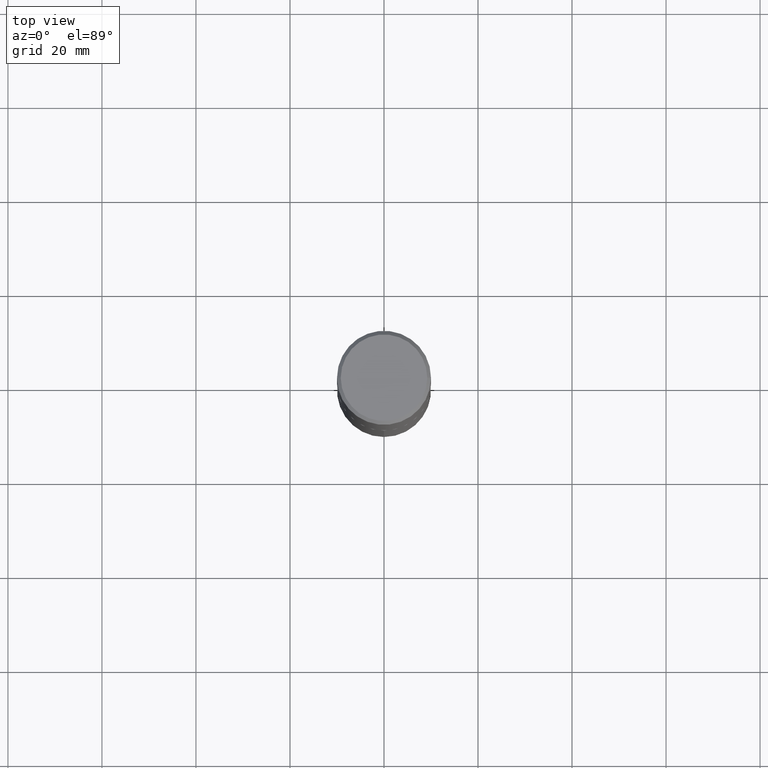
[diagram: clean part render]
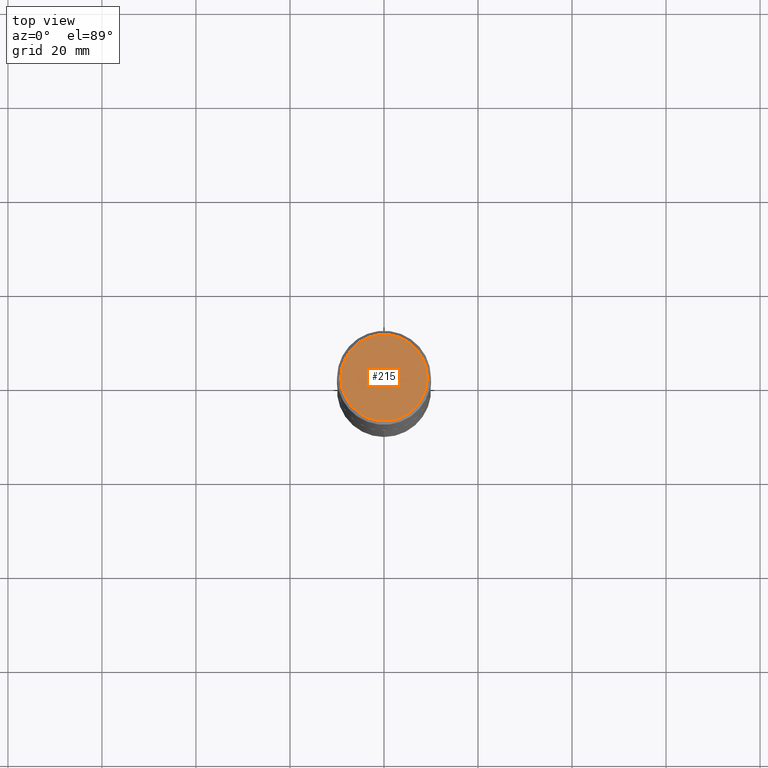
[diagram: same view with one face highlighted and labeled with its STEP entity id]
A machine part, top view. The second image highlights one B-rep face of the part: STEP entity #215.
In plain terms, the highlighted planar face has unit normal (0, -0, -1).
Its self-contained STEP definition (entity closure, byte-faithful):
#2 = AXIS2_PLACEMENT_3D ( 'NONE', #25, #107, #204 ) ;
#4 = CARTESIAN_POINT ( 'NONE',  ( -1.178467787315321927E-46, 1.682539673960461744E-32, 4.818985154644842843E-18 ) ) ;
#13 = ORIENTED_EDGE ( 'NONE', *, *, #168, .T. ) ;
#14 = AXIS2_PLACEMENT_3D ( 'NONE', #331, #56, #328 ) ;
#25 = CARTESIAN_POINT ( 'NONE',  ( -1.178467787315321927E-46, 1.682539673960461744E-32, 4.818985154644842843E-18 ) ) ;
#44 = EDGE_CURVE ( 'NONE', #99, #225, #329, .T. ) ;
#56 = DIRECTION ( 'NONE',  ( 2.438088387897960049E-29, -3.491481338843145188E-15, -1.000000000000000000 ) ) ;
#67 = CIRCLE ( 'NONE', #277, 0.3624500000000000499 ) ;
#84 = DIRECTION ( 'NONE',  ( 1.000000000000000000, -6.982962677686266711E-15, 4.876156645145296500E-29 ) ) ;
#99 = VERTEX_POINT ( 'NONE', #321 ) ;
#107 = DIRECTION ( 'NONE',  ( -2.445468806185136597E-29, 3.491481338843145583E-15, 1.000000000000000000 ) ) ;
#115 = PLANE ( 'NONE',  #14 ) ;
#168 = EDGE_CURVE ( 'NONE', #225, #99, #67, .T. ) ;
#204 = DIRECTION ( 'NONE',  ( 1.000000000000000000, -6.982962677686266711E-15, 4.876156645145296500E-29 ) ) ;
#215 = ADVANCED_FACE ( 'NONE', ( #216 ), #115, .F. ) ;
#216 = FACE_OUTER_BOUND ( 'NONE', #308, .T. ) ;
#225 = VERTEX_POINT ( 'NONE', #354 ) ;
#230 = ORIENTED_EDGE ( 'NONE', *, *, #44, .T. ) ;
#240 = DIRECTION ( 'NONE',  ( -2.445468806185136597E-29, 3.491481338843145583E-15, 1.000000000000000000 ) ) ;
#277 = AXIS2_PLACEMENT_3D ( 'NONE', #4, #240, #84 ) ;
#308 = EDGE_LOOP ( 'NONE', ( #230, #13 ) ) ;
#321 = CARTESIAN_POINT ( 'NONE',  ( -0.3624500000000000499, 2.585529218446811143E-15, 4.818985154626951724E-18 ) ) ;
#328 = DIRECTION ( 'NONE',  ( -1.000000000000000000, 6.982962677686265922E-15, -4.876176775795935793E-29 ) ) ;
#329 = CIRCLE ( 'NONE', #2, 0.3624500000000000499 ) ;
#331 = CARTESIAN_POINT ( 'NONE',  ( -5.892338936576609633E-47, 8.412698369802308719E-33, 2.409492577322421421E-18 ) ) ;
#354 = CARTESIAN_POINT ( 'NONE',  ( 0.3624500000000000499, -2.648337176426896411E-15, 4.818985154662952747E-18 ) ) ;